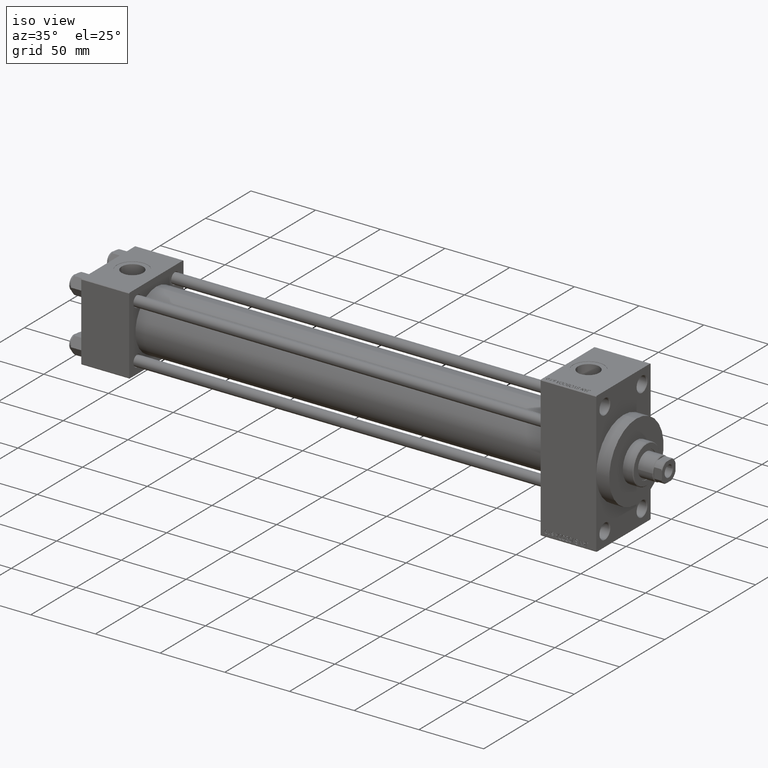
[diagram: clean part render]
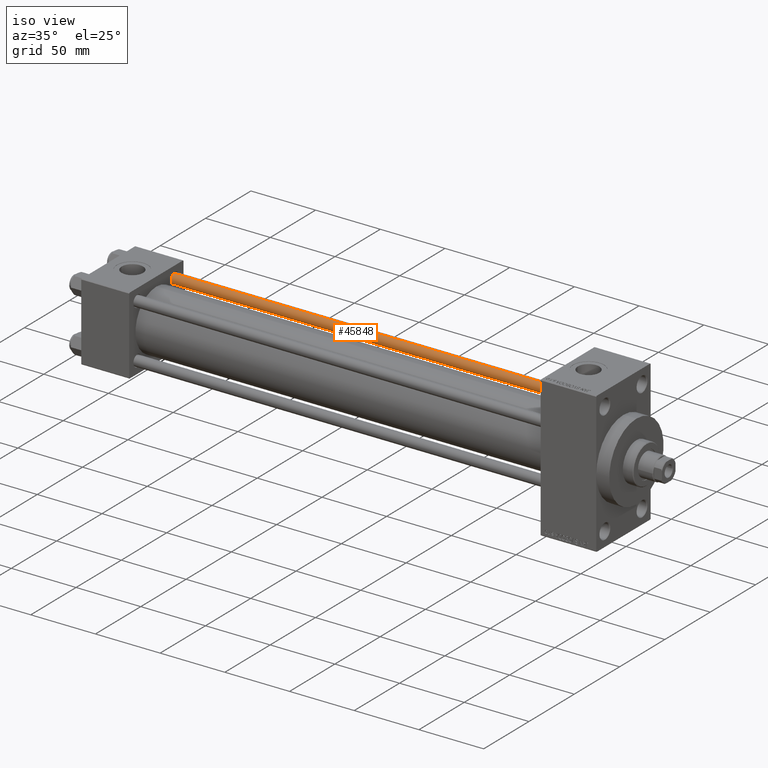
[diagram: same view with one face highlighted and labeled with its STEP entity id]
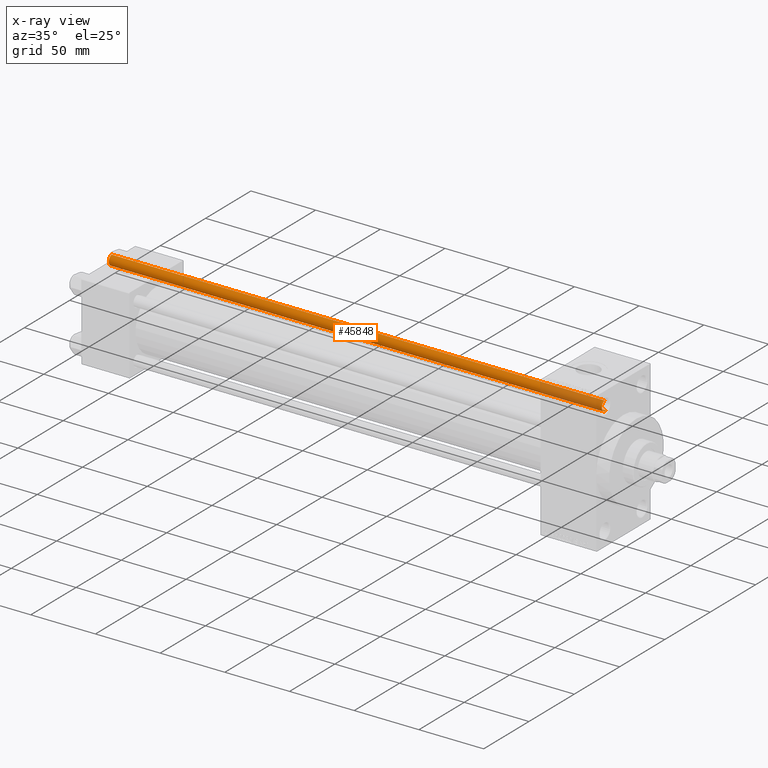
[diagram: x-ray of the same camera — body ghosted, the highlighted face saturated]
A machine part, iso view. The second image highlights one B-rep face of the part: STEP entity #45848.
The next image is the same camera in x-ray: the body ghosted, the highlighted face saturated — about 12% of this face is hidden behind the body in this view.
In plain terms, the highlighted cylindrical surface (edge-blend (fillet) strip) has radius 4 mm, axis along (-1, -0, 0).
Its self-contained STEP definition (entity closure, byte-faithful):
#938 = CARTESIAN_POINT ( 'NONE',  ( 4.000000000000000000, 4.898587196589412829E-16, 0.5000000000000559552 ) ) ;
#941 = CIRCLE ( 'NONE', #28834, 4.000000000000000000 ) ;
#2092 = VECTOR ( 'NONE', #34353, 1000.000000000000000 ) ;
#2118 = AXIS2_PLACEMENT_3D ( 'NONE', #17173, #40075, #2677 ) ;
#2183 = EDGE_CURVE ( 'NONE', #14228, #19677, #16218, .T. ) ;
#2197 = CARTESIAN_POINT ( 'NONE',  ( 4.000000000000000000, 4.898587196589412829E-16, 381.5000000000000568 ) ) ;
#2281 = CARTESIAN_POINT ( 'NONE',  ( -4.000000000000000000, 0.000000000000000000, 381.5000000000000568 ) ) ;
#2580 = DIRECTION ( 'NONE',  ( 1.000000000000000000, 0.000000000000000000, 0.000000000000000000 ) ) ;
#2677 = DIRECTION ( 'NONE',  ( -1.000000000000000000, 0.000000000000000000, 0.000000000000000000 ) ) ;
#4050 = ORIENTED_EDGE ( 'NONE', *, *, #2183, .T. ) ;
#5024 = DIRECTION ( 'NONE',  ( -0.000000000000000000, -0.000000000000000000, 1.000000000000000000 ) ) ;
#5582 = ORIENTED_EDGE ( 'NONE', *, *, #42429, .F. ) ;
#6689 = ORIENTED_EDGE ( 'NONE', *, *, #16632, .T. ) ;
#7738 = CARTESIAN_POINT ( 'NONE',  ( -4.000000000000000000, 0.000000000000000000, 382.0000000000000000 ) ) ;
#13755 = AXIS2_PLACEMENT_3D ( 'NONE', #29276, #32759, #2580 ) ;
#14228 = VERTEX_POINT ( 'NONE', #2281 ) ;
#15193 = CARTESIAN_POINT ( 'NONE',  ( 4.000000000000000000, 4.898587196589412829E-16, 382.0000000000000000 ) ) ;
#16218 = LINE ( 'NONE', #7738, #18285 ) ;
#16632 = EDGE_CURVE ( 'NONE', #19677, #36422, #941, .T. ) ;
#17173 = CARTESIAN_POINT ( 'NONE',  ( 0.000000000000000000, 0.000000000000000000, 382.0000000000000000 ) ) ;
#17236 = EDGE_CURVE ( 'NONE', #25500, #14228, #34436, .T. ) ;
#18285 = VECTOR ( 'NONE', #22965, 1000.000000000000000 ) ;
#19677 = VERTEX_POINT ( 'NONE', #33203 ) ;
#22965 = DIRECTION ( 'NONE',  ( -0.000000000000000000, -0.000000000000000000, -1.000000000000000000 ) ) ;
#25500 = VERTEX_POINT ( 'NONE', #2197 ) ;
#25634 = CYLINDRICAL_SURFACE ( 'NONE', #2118, 4.000000000000000000 ) ;
#28834 = AXIS2_PLACEMENT_3D ( 'NONE', #32192, #5024, #31215 ) ;
#29276 = CARTESIAN_POINT ( 'NONE',  ( 0.000000000000000000, 0.000000000000000000, 381.5000000000000568 ) ) ;
#30385 = LINE ( 'NONE', #15193, #2092 ) ;
#31215 = DIRECTION ( 'NONE',  ( 1.000000000000000000, 0.000000000000000000, 0.000000000000000000 ) ) ;
#32192 = CARTESIAN_POINT ( 'NONE',  ( 0.000000000000000000, 0.000000000000000000, 0.5000000000000559552 ) ) ;
#32248 = ORIENTED_EDGE ( 'NONE', *, *, #17236, .T. ) ;
#32759 = DIRECTION ( 'NONE',  ( 0.000000000000000000, 0.000000000000000000, -1.000000000000000000 ) ) ;
#33203 = CARTESIAN_POINT ( 'NONE',  ( -4.000000000000000000, 0.000000000000000000, 0.5000000000000559552 ) ) ;
#34353 = DIRECTION ( 'NONE',  ( -0.000000000000000000, -0.000000000000000000, -1.000000000000000000 ) ) ;
#34436 = CIRCLE ( 'NONE', #13755, 4.000000000000000000 ) ;
#36422 = VERTEX_POINT ( 'NONE', #938 ) ;
#38617 = EDGE_LOOP ( 'NONE', ( #5582, #32248, #4050, #6689 ) ) ;
#40075 = DIRECTION ( 'NONE',  ( -0.000000000000000000, -0.000000000000000000, -1.000000000000000000 ) ) ;
#40575 = FACE_OUTER_BOUND ( 'NONE', #38617, .T. ) ;
#42429 = EDGE_CURVE ( 'NONE', #25500, #36422, #30385, .T. ) ;
#45848 = ADVANCED_FACE ( 'NONE', ( #40575 ), #25634, .T. ) ;